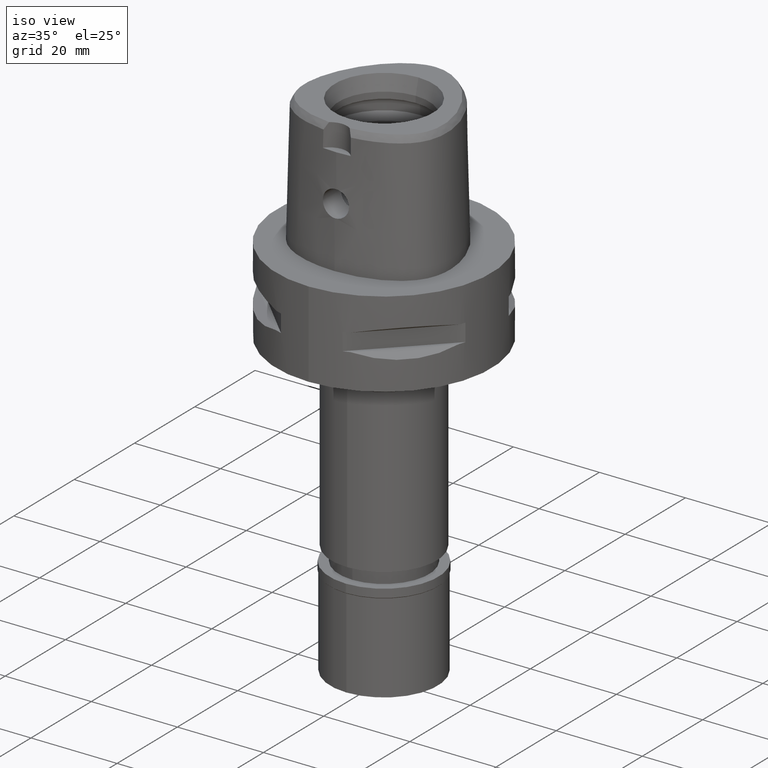
[diagram: clean part render]
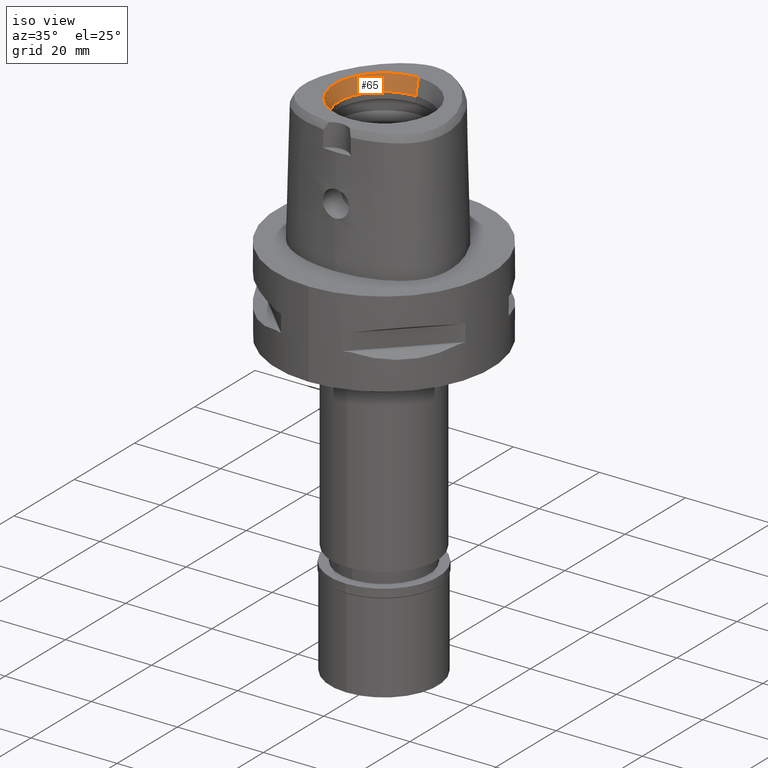
[diagram: same view with one face highlighted and labeled with its STEP entity id]
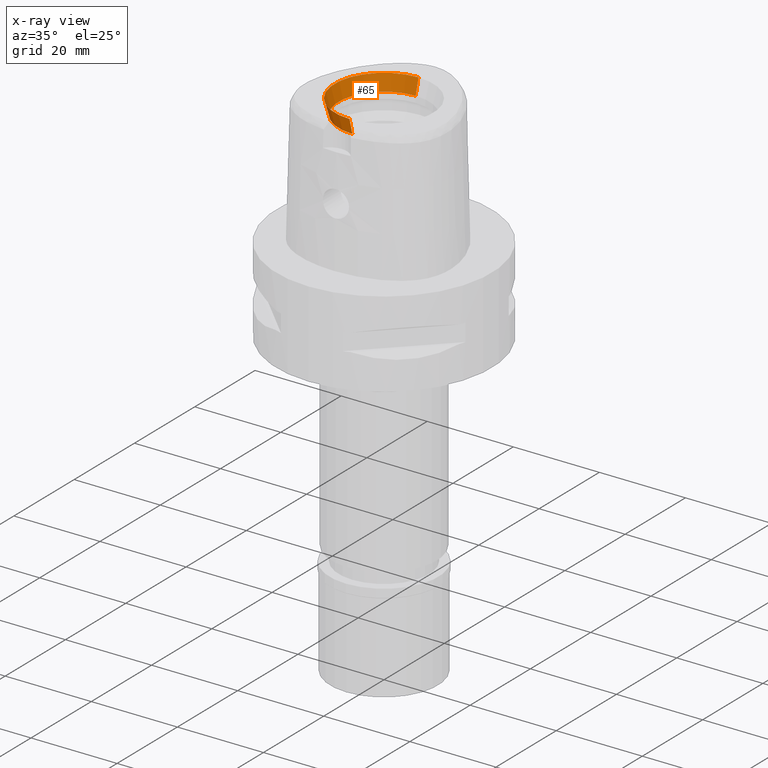
[diagram: x-ray of the same camera — body ghosted, the highlighted face saturated]
A machine part, iso view. The second image highlights one B-rep face of the part: STEP entity #65.
The next image is the same camera in x-ray: the body ghosted, the highlighted face saturated — about 0% of this face is hidden behind the body in this view.
In plain terms, the highlighted conical surface has half-angle 15 deg.
Its self-contained STEP definition (entity closure, byte-faithful):
#53 = ORIENTED_EDGE ( 'NONE', *, *, #3040, .F. ) ;
#65 = ADVANCED_FACE ( 'NONE', ( #71 ), #3953, .F. ) ;
#71 = FACE_OUTER_BOUND ( 'NONE', #2646, .T. ) ;
#121 = DIRECTION ( 'NONE',  ( 0.0000000000000000000, -0.2588190451023999472, 0.9659258262891006197 ) ) ;
#527 = DIRECTION ( 'NONE',  ( 0.0000000000000000000, 0.2588190451023999472, 0.9659258262891006197 ) ) ;
#731 = CARTESIAN_POINT ( 'NONE',  ( 0.0000000000000000000, 1.570609519905999910E-14, 30.00000000000000000 ) ) ;
#766 = DIRECTION ( 'NONE',  ( 0.0000000000000000000, 0.0000000000000000000, 1.000000000000000000 ) ) ;
#807 = ORIENTED_EDGE ( 'NONE', *, *, #2972, .T. ) ;
#986 = CARTESIAN_POINT ( 'NONE',  ( 0.0000000000000000000, -10.50000000000000000, 26.50000000000000000 ) ) ;
#1137 = VERTEX_POINT ( 'NONE', #986 ) ;
#1308 = LINE ( 'NONE', #2031, #1973 ) ;
#1323 = EDGE_CURVE ( 'NONE', #3827, #1137, #3408, .T. ) ;
#1357 = AXIS2_PLACEMENT_3D ( 'NONE', #4711, #1686, #4615 ) ;
#1595 = ORIENTED_EDGE ( 'NONE', *, *, #1323, .F. ) ;
#1621 = AXIS2_PLACEMENT_3D ( 'NONE', #4834, #766, #1848 ) ;
#1672 = VECTOR ( 'NONE', #121, 1000.000000000000114 ) ;
#1686 = DIRECTION ( 'NONE',  ( 0.0000000000000000000, 0.0000000000000000000, 1.000000000000000000 ) ) ;
#1848 = DIRECTION ( 'NONE',  ( 0.0000000000000000000, 1.000000000000000000, 0.0000000000000000000 ) ) ;
#1973 = VECTOR ( 'NONE', #527, 1000.000000000000114 ) ;
#2031 = CARTESIAN_POINT ( 'NONE',  ( 0.0000000000000000000, 10.50000000000000000, 26.50000000000000000 ) ) ;
#2411 = ORIENTED_EDGE ( 'NONE', *, *, #2695, .T. ) ;
#2449 = LINE ( 'NONE', #3518, #1672 ) ;
#2646 = EDGE_LOOP ( 'NONE', ( #53, #1595, #807, #2411 ) ) ;
#2695 = EDGE_CURVE ( 'NONE', #3269, #4020, #3609, .T. ) ;
#2972 = EDGE_CURVE ( 'NONE', #3827, #3269, #1308, .T. ) ;
#3040 = EDGE_CURVE ( 'NONE', #1137, #4020, #2449, .T. ) ;
#3074 = CARTESIAN_POINT ( 'NONE',  ( 0.0000000000000000000, 11.43782217350000074, 30.00000000000000000 ) ) ;
#3269 = VERTEX_POINT ( 'NONE', #3074 ) ;
#3408 = CIRCLE ( 'NONE', #1621, 10.50000000000000000 ) ;
#3518 = CARTESIAN_POINT ( 'NONE',  ( 0.0000000000000000000, -10.50000000000000000, 26.50000000000000000 ) ) ;
#3609 = CIRCLE ( 'NONE', #4483, 11.43782217350000074 ) ;
#3667 = DIRECTION ( 'NONE',  ( 0.0000000000000000000, 0.0000000000000000000, 1.000000000000000000 ) ) ;
#3827 = VERTEX_POINT ( 'NONE', #4902 ) ;
#3953 = CONICAL_SURFACE ( 'NONE', #1357, 10.96891108674999948, 0.2617993877991000029 ) ;
#4020 = VERTEX_POINT ( 'NONE', #4448 ) ;
#4448 = CARTESIAN_POINT ( 'NONE',  ( 0.0000000000000000000, -11.43782217350000074, 30.00000000000000000 ) ) ;
#4483 = AXIS2_PLACEMENT_3D ( 'NONE', #731, #3667, #4868 ) ;
#4615 = DIRECTION ( 'NONE',  ( 0.0000000000000000000, 1.000000000000000000, 0.0000000000000000000 ) ) ;
#4711 = CARTESIAN_POINT ( 'NONE',  ( 0.0000000000000000000, 1.570609519905999910E-14, 28.25000000000000000 ) ) ;
#4834 = CARTESIAN_POINT ( 'NONE',  ( 0.0000000000000000000, 1.570609519905999910E-14, 26.50000000000000000 ) ) ;
#4868 = DIRECTION ( 'NONE',  ( 0.0000000000000000000, 1.000000000000000000, 0.0000000000000000000 ) ) ;
#4902 = CARTESIAN_POINT ( 'NONE',  ( 0.0000000000000000000, 10.50000000000000000, 26.50000000000000000 ) ) ;